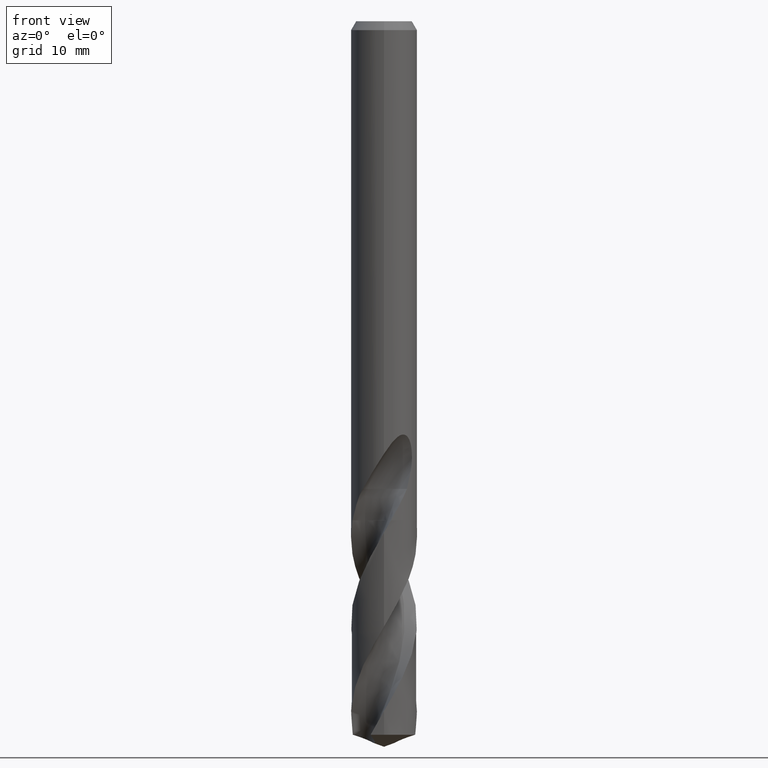
[diagram: clean part render]
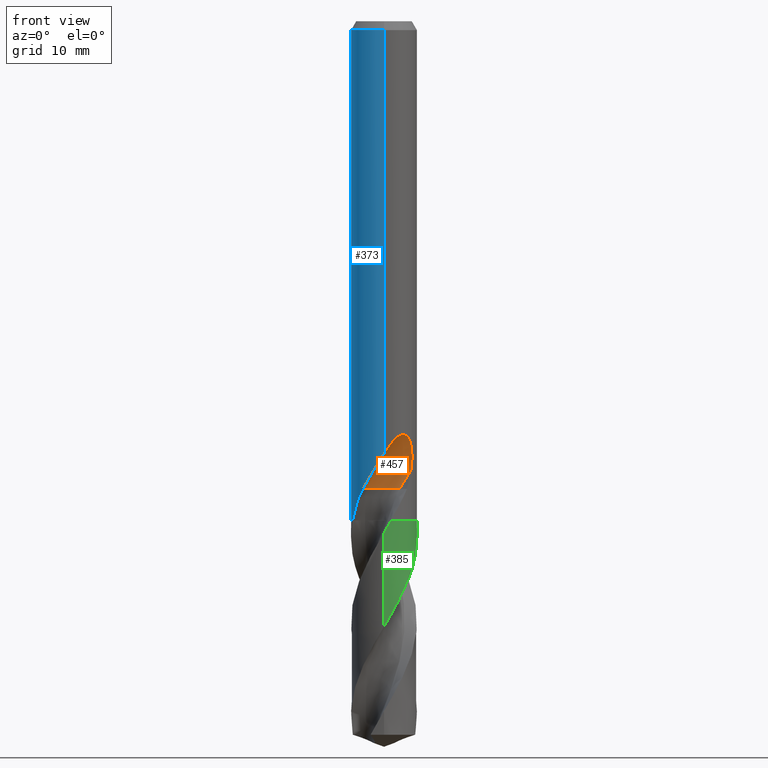
[diagram: same view with three faces highlighted in distinct colors, each labeled with its STEP entity id]
A machine part, front view with three faces highlighted in distinct colors.
Their STEP definitions:

[orange] entity #457 — the highlighted face is a SurfaceOfRevolution surface.
#337=VERTEX_POINT('',#876);
#403=VERTEX_POINT('',#954);
#413=EDGE_CURVE('',#761,#435,#964,.T.);
#425=EDGE_CURVE('',#435,#487,#977,.T.);
#435=VERTEX_POINT('',#988);
#457=ADVANCED_FACE('',(#1013),#1014,.F.);
#475=EDGE_CURVE('',#337,#403,#1032,.T.);
#487=VERTEX_POINT('',#1045);
#627=EDGE_CURVE('',#487,#403,#1193,.T.);
#683=EDGE_CURVE('',#761,#337,#1251,.T.);
#761=VERTEX_POINT('',#1335);
#876=CARTESIAN_POINT('',(8.89361311375361E-013,-3.0,-39.3520632578571));
#954=CARTESIAN_POINT('',(2.44092648989433,-1.74409801070127,-40.8982593158529));
#964=CIRCLE('',#2587,2.0);
#977=CIRCLE('',#2615,2.0);
#988=CARTESIAN_POINT('',(0.311677164133587,-0.92442301917811,-42.541));
#1013=FACE_OUTER_BOUND('',#3301,.T.);
#1014=SURFACE_OF_REVOLUTION('',#3302,#3303);
#1032=B_SPLINE_CURVE_WITH_KNOTS('',3,(#3360,#3361,#3362,#3363,#3364,#3365,#3366,#3367,#3368,#3369,#3370,#3371,#3372,#3373,#3374,#3375,#3376,#3377,#3378,#3379,#3380,#3381,#3382,#3383,#3384,#3385,#3386,#3387,#3388,#3389),.UNSPECIFIED.,.F.,.F.,(4,2,2,2,2,2,2,2,2,2,2,2,2,2,4),(0.0,1.46983380852508,2.27239678300735,2.99931696905311,3.84382348162485,4.858268817967,5.73750597834077,6.13594597323101,6.42715702904358,6.70272785476238,7.0523058754645,7.56375269949944,8.29083449399954,8.76663287136837,9.26666465794678),.UNSPECIFIED.);
#1045=CARTESIAN_POINT('',(1.41421356230238,-1.48578643769762,-42.541));
#1193=CIRCLE('',#4982,13.0357797004233);
#1251=B_SPLINE_CURVE_WITH_KNOTS('',3,(#5417,#5418,#5419,#5420,#5421,#5422,#5423,#5424,#5425,#5426,#5427,#5428,#5429,#5430,#5431,#5432,#5433,#5434,#5435,#5436,#5437,#5438,#5439,#5440,#5441,#5442,#5443,#5444,#5445,#5446),.UNSPECIFIED.,.F.,.F.,(4,2,2,2,2,2,2,2,2,2,2,2,2,2,4),(0.0,1.46983380852508,2.27239678300735,2.99931696905311,3.84382348162485,4.858268817967,5.73750597834077,6.13594597323101,6.42715702904358,6.70272785476238,7.0523058754645,7.56375269949944,8.29083449399954,8.76663287136837,9.26666465794678),.UNSPECIFIED.);
#1335=CARTESIAN_POINT('',(-1.91164679377282,-2.31205677608879,-42.541));
#2587=AXIS2_PLACEMENT_3D('',#7224,#7225,#7226);
#2615=AXIS2_PLACEMENT_3D('',#7254,#7255,#7256);
#3301=EDGE_LOOP('',(#7289,#7290,#7291,#7292,#7293));
#3302=(B_SPLINE_CURVE(3,(#7295,#7296,#7297,#7298,#7299,#7300,#7301,#7302,#7303),.UNSPECIFIED.,.F.,.F.)B_SPLINE_CURVE_WITH_KNOTS((4,1,3,1,4),(-2.8563742903593,-2.55358495452377,-2.25079561868823,-1.94800628285269,-1.64521694701715),.UNSPECIFIED.)RATIONAL_B_SPLINE_CURVE((1.09168138189573,1.03056046063191,0.969439539368091,1.03056046063191,1.09168138189573,1.03056046063191,0.969439539368091,1.03056046063191,1.09168138189573))BOUNDED_CURVE()REPRESENTATION_ITEM('')GEOMETRIC_REPRESENTATION_ITEM()CURVE());
#3303=AXIS1_PLACEMENT('',#7310,#7311);
#3360=CARTESIAN_POINT('',(-1.91164679377282,-2.3120567760888,-42.541));
#3361=CARTESIAN_POINT('',(-1.71375575951833,-2.47567635717405,-42.1237309200278));
#3362=CARTESIAN_POINT('',(-1.486225837873,-2.62112280809457,-41.7347016240395));
#3363=CARTESIAN_POINT('',(-1.08948145585001,-2.79939790357086,-41.0848014893283));
#3364=CARTESIAN_POINT('',(-0.946714273149319,-2.8506808795086,-40.8561448922827));
#3365=CARTESIAN_POINT('',(-0.670335042945821,-2.92732506647416,-40.4135249483925));
#3366=CARTESIAN_POINT('',(-0.537957031087602,-2.95440327743711,-40.2016247371715));
#3367=CARTESIAN_POINT('',(-0.251414391582686,-2.99348382974489,-39.7449234783705));
#3368=CARTESIAN_POINT('',(-0.0948562800467593,-3.00265887070914,-39.4965476035652));
#3369=CARTESIAN_POINT('',(0.252819179254558,-2.99534565963354,-38.9651896548676));
#3370=CARTESIAN_POINT('',(0.458955583756489,-2.97272600277572,-38.6628411750704));
#3371=CARTESIAN_POINT('',(0.856462988645532,-2.88137700708898,-38.1642893885912));
#3372=CARTESIAN_POINT('',(1.07638794081266,-2.81178060567446,-37.9210156171277));
#3373=CARTESIAN_POINT('',(1.40924217176594,-2.65091070729521,-37.6932142640234));
#3374=CARTESIAN_POINT('',(1.51941910433014,-2.59017863231219,-37.6369154430279));
#3375=CARTESIAN_POINT('',(1.71247442146329,-2.46512979296182,-37.5936678633664));
#3376=CARTESIAN_POINT('',(1.79165724831738,-2.40818161234519,-37.592860332513));
#3377=CARTESIAN_POINT('',(1.93913954004224,-2.29088024762937,-37.6307109988692));
#3378=CARTESIAN_POINT('',(2.00364093548818,-2.2342260299911,-37.6661993543013));
#3379=CARTESIAN_POINT('',(2.1349005591831,-2.11007273708381,-37.7772383317337));
#3380=CARTESIAN_POINT('',(2.19562720141664,-2.04573338410109,-37.8592206391473));
#3381=CARTESIAN_POINT('',(2.32001499988593,-1.90524369772981,-38.0837136544856));
#3382=CARTESIAN_POINT('',(2.37946988853628,-1.82873701452893,-38.2502211307938));
#3383=CARTESIAN_POINT('',(2.49127260630273,-1.6751125614895,-38.7160905297008));
#3384=CARTESIAN_POINT('',(2.53169187388303,-1.6096759357542,-39.0478764713719));
#3385=CARTESIAN_POINT('',(2.55169781586479,-1.57767585152545,-39.6619314380946));
#3386=CARTESIAN_POINT('',(2.54699382472898,-1.58547551567002,-39.9064790286728));
#3387=CARTESIAN_POINT('',(2.51376896782865,-1.63767237368775,-40.4027884481159));
#3388=CARTESIAN_POINT('',(2.48410311457679,-1.6836708063326,-40.6526821951794));
#3389=CARTESIAN_POINT('',(2.44092648989433,-1.74409801070127,-40.8982593158529));
#4982=AXIS2_PLACEMENT_3D('',#7430,#7431,#7432);
#5417=CARTESIAN_POINT('',(-1.91164679377282,-2.3120567760888,-42.541));
#5418=CARTESIAN_POINT('',(-1.71375575951833,-2.47567635717405,-42.1237309200278));
#5419=CARTESIAN_POINT('',(-1.486225837873,-2.62112280809457,-41.7347016240395));
#5420=CARTESIAN_POINT('',(-1.08948145585001,-2.79939790357086,-41.0848014893283));
#5421=CARTESIAN_POINT('',(-0.946714273149319,-2.8506808795086,-40.8561448922827));
#5422=CARTESIAN_POINT('',(-0.670335042945821,-2.92732506647416,-40.4135249483925));
#5423=CARTESIAN_POINT('',(-0.537957031087602,-2.95440327743711,-40.2016247371715));
#5424=CARTESIAN_POINT('',(-0.251414391582686,-2.99348382974489,-39.7449234783705));
#5425=CARTESIAN_POINT('',(-0.0948562800467593,-3.00265887070914,-39.4965476035652));
#5426=CARTESIAN_POINT('',(0.252819179254558,-2.99534565963354,-38.9651896548676));
#5427=CARTESIAN_POINT('',(0.458955583756489,-2.97272600277572,-38.6628411750704));
#5428=CARTESIAN_POINT('',(0.856462988645532,-2.88137700708898,-38.1642893885912));
#5429=CARTESIAN_POINT('',(1.07638794081266,-2.81178060567446,-37.9210156171277));
#5430=CARTESIAN_POINT('',(1.40924217176594,-2.65091070729521,-37.6932142640234));
#5431=CARTESIAN_POINT('',(1.51941910433014,-2.59017863231219,-37.6369154430279));
#5432=CARTESIAN_POINT('',(1.71247442146329,-2.46512979296182,-37.5936678633664));
#5433=CARTESIAN_POINT('',(1.79165724831738,-2.40818161234519,-37.592860332513));
#5434=CARTESIAN_POINT('',(1.93913954004224,-2.29088024762937,-37.6307109988692));
#5435=CARTESIAN_POINT('',(2.00364093548818,-2.2342260299911,-37.6661993543013));
#5436=CARTESIAN_POINT('',(2.1349005591831,-2.11007273708381,-37.7772383317337));
#5437=CARTESIAN_POINT('',(2.19562720141664,-2.04573338410109,-37.8592206391473));
#5438=CARTESIAN_POINT('',(2.32001499988593,-1.90524369772981,-38.0837136544856));
#5439=CARTESIAN_POINT('',(2.37946988853628,-1.82873701452893,-38.2502211307938));
#5440=CARTESIAN_POINT('',(2.49127260630273,-1.6751125614895,-38.7160905297008));
#5441=CARTESIAN_POINT('',(2.53169187388303,-1.6096759357542,-39.0478764713719));
#5442=CARTESIAN_POINT('',(2.55169781586479,-1.57767585152545,-39.6619314380946));
#5443=CARTESIAN_POINT('',(2.54699382472898,-1.58547551567002,-39.9064790286728));
#5444=CARTESIAN_POINT('',(2.51376896782865,-1.63767237368775,-40.4027884481159));
#5445=CARTESIAN_POINT('',(2.48410311457679,-1.6836708063326,-40.6526821951794));
#5446=CARTESIAN_POINT('',(2.44092648989433,-1.74409801070127,-40.8982593158529));
#7224=CARTESIAN_POINT('',(-1.41421362090924E-005,-2.89998585786379,-42.541));
#7225=DIRECTION('',(-0.0,0.0,-1.0));
#7226=DIRECTION('',(-0.707099710083089,-0.707113852219296,0.0));
#7254=CARTESIAN_POINT('',(-1.41421362090924E-005,-2.89998585786379,-42.541));
#7255=DIRECTION('',(-0.0,0.0,-1.0));
#7256=DIRECTION('',(-0.707099710083089,-0.707113852219296,0.0));
#7289=ORIENTED_EDGE('',*,*,#683,.F.);
#7290=ORIENTED_EDGE('',*,*,#413,.T.);
#7291=ORIENTED_EDGE('',*,*,#425,.T.);
#7292=ORIENTED_EDGE('',*,*,#627,.T.);
#7293=ORIENTED_EDGE('',*,*,#475,.F.);
#7295=CARTESIAN_POINT('',(1.41421356230238,-1.48578643769762,-42.541));
#7296=CARTESIAN_POINT('',(1.13720927222346,-1.20877660747726,-42.541));
#7297=CARTESIAN_POINT('',(0.416915994492206,-0.815171524174363,-42.541));
#7298=CARTESIAN_POINT('',(-0.399354072916251,-0.901488061406306,-42.541));
#7299=CARTESIAN_POINT('',(-0.761588079575223,-1.0506602678679,-42.541));
#7300=CARTESIAN_POINT('',(-1.1238220862342,-1.1998324743295,-42.541));
#7301=CARTESIAN_POINT('',(-1.76415995760597,-1.71336414621916,-42.541));
#7302=CARTESIAN_POINT('',(-1.99839369541601,-2.50005463403394,-42.541));
#7303=CARTESIAN_POINT('',(-1.99999738382966,-2.8917984928809,-42.541));
#7310=CARTESIAN_POINT('',(1.01696256165565,-14.5,-43.1766016010348));
#7311=DIRECTION('',(-0.847998304005088,0.0,0.52999894000318));
#7430=CARTESIAN_POINT('',(1.01696256165565,-14.5,-43.1766016010348));
#7431=DIRECTION('',(0.847998304005088,0.0,-0.52999894000318));
#7432=DIRECTION('',(0.0535598122533608,0.994880693138896,0.0856956996053773));

[blue] entity #373 — the highlighted cylindrical surface (edge-blend (fillet) strip) has radius 3 mm, axis along (-0, -0, 1).
#331=EDGE_CURVE('',#357,#655,#869,.T.);
#337=VERTEX_POINT('',#876);
#347=EDGE_CURVE('',#337,#581,#888,.T.);
#351=VERTEX_POINT('',#892);
#357=VERTEX_POINT('',#898);
#361=EDGE_CURVE('',#351,#761,#902,.T.);
#373=ADVANCED_FACE('',(#918),#919,.T.);
#419=EDGE_CURVE('',#763,#357,#971,.T.);
#421=VERTEX_POINT('',#973);
#431=VERTEX_POINT('',#984);
#449=VERTEX_POINT('',#1005);
#455=VERTEX_POINT('',#1011);
#469=EDGE_CURVE('',#449,#455,#1026,.T.);
#471=EDGE_CURVE('',#797,#421,#1028,.T.);
#481=EDGE_CURVE('',#753,#505,#1039,.T.);
#491=EDGE_CURVE('',#581,#643,#1049,.T.);
#493=EDGE_CURVE('',#643,#763,#1051,.T.);
#505=VERTEX_POINT('',#1064);
#511=VERTEX_POINT('',#1071);
#529=EDGE_CURVE('',#745,#431,#1089,.T.);
#537=EDGE_CURVE('',#351,#421,#1097,.T.);
#569=EDGE_CURVE('',#611,#573,#1132,.T.);
#573=VERTEX_POINT('',#1136);
#581=VERTEX_POINT('',#1144);
#607=EDGE_CURVE('',#431,#449,#1171,.T.);
#609=EDGE_CURVE('',#511,#699,#1173,.T.);
#611=VERTEX_POINT('',#1175);
#643=VERTEX_POINT('',#1210);
#655=VERTEX_POINT('',#1222);
#659=EDGE_CURVE('',#455,#511,#1226,.T.);
#677=EDGE_CURVE('',#505,#611,#1245,.T.);
#683=EDGE_CURVE('',#761,#337,#1251,.T.);
#699=VERTEX_POINT('',#1268);
#709=EDGE_CURVE('',#573,#745,#1278,.T.);
#745=VERTEX_POINT('',#1318);
#753=VERTEX_POINT('',#1327);
#757=EDGE_CURVE('',#699,#797,#1331,.T.);
#761=VERTEX_POINT('',#1335);
#763=VERTEX_POINT('',#1337);
#797=VERTEX_POINT('',#1375);
#799=EDGE_CURVE('',#655,#753,#1377,.T.);
#869=ELLIPSE('',#1720,4.39883755691887,3.0);
#876=CARTESIAN_POINT('',(8.89361311375361E-013,-3.0,-39.3520632578571));
#888=LINE('',#1743,#1744);
#892=CARTESIAN_POINT('',(-2.86501733623269,-0.889761576539553,-45.4));
#898=CARTESIAN_POINT('',(-2.2826599132014,1.94665449442457,-23.8713369953104));
#902=B_SPLINE_CURVE_WITH_KNOTS('',3,(#1765,#1766,#1767,#1768,#1769,#1770,#1771,#1772,#1773,#1774,#1775,#1776),.UNSPECIFIED.,.F.,.F.,(4,2,2,2,2,4),(0.0,0.415306027999792,1.16752740412631,2.28143363996332,2.73150142560601,3.42846224267929),.UNSPECIFIED.);
#918=FACE_OUTER_BOUND('',#1947,.T.);
#919=CYLINDRICAL_SURFACE('',#1948,3.0);
#971=B_SPLINE_CURVE_WITH_KNOTS('',3,(#2597,#2598,#2599,#2600,#2601,#2602,#2603,#2604,#2605,#2606,#2607,#2608),.UNSPECIFIED.,.F.,.F.,(4,2,2,2,2,4),(3.30788956954355,3.5751625180179,3.84243546649225,4.1097084149666,4.37698136344095,4.6442543119153),.UNSPECIFIED.);
#973=CARTESIAN_POINT('',(-0.645483483322594,2.92973566602138,-45.4));
#984=CARTESIAN_POINT('',(-3.67381906146713E-016,3.0,-32.7128911336578));
#1005=CARTESIAN_POINT('',(-1.337052752443,2.68557069115386,-33.3720803908795));
#1011=CARTESIAN_POINT('',(-2.46407913303377E-016,3.0,-34.0310253601033));
#1026=B_SPLINE_CURVE_WITH_KNOTS('',3,(#3328,#3329,#3330,#3331,#3332,#3333,#3334,#3335,#3336,#3337,#3338,#3339,#3340,#3341,#3342,#3343),.UNSPECIFIED.,.F.,.F.,(4,2,2,2,2,2,2,4),(5.66023402257373,6.29060333517104,6.60504483258975,6.91948633000846,7.23392782742717,7.54836932484587,7.86141901111221,8.17446869737855),.UNSPECIFIED.);
#1028=B_SPLINE_CURVE_WITH_KNOTS('',3,(#3346,#3347,#3348,#3349,#3350,#3351,#3352,#3353,#3354,#3355),.UNSPECIFIED.,.F.,.F.,(4,2,2,2,4),(0.0,0.736394107318382,1.40283827856893,1.80419873583551,2.99560717369439),.UNSPECIFIED.);
#1039=B_SPLINE_CURVE_WITH_KNOTS('',3,(#3399,#3400,#3401,#3402,#3403,#3404,#3405,#3406,#3407,#3408,#3409,#3410,#3411,#3412,#3413,#3414,#3415,#3416,#3417,#3418,#3419,#3420,#3421,#3422,#3423,#3424,#3425),.UNSPECIFIED.,.F.,.F.,(4,2,3,2,2,2,2,2,2,2,2,2,4),(-0.54422824842136,-0.27211412421068,0.0,0.272114124210678,0.544228248421357,0.817906359646673,1.09158447087199,1.36255924571499,1.63353402055798,1.90530456554772,2.17707511053746,2.4488456555272,2.72061620051693),.UNSPECIFIED.);
#1049=CIRCLE('',#3437,3.0);
#1051=ELLIPSE('',#3440,85.9611250435315,3.0);
#1064=CARTESIAN_POINT('',(-0.486378944383045,2.96031003823262,-31.6432837483006));
#1071=CARTESIAN_POINT('',(-8.87140865326111E-013,3.0,-39.3520632578571));
#1089=LINE('',#3558,#3559);
#1097=CIRCLE('',#3607,3.0);
#1132=CIRCLE('',#4184,3.0);
#1136=CARTESIAN_POINT('',(-1.0350734039088,2.81578107254819,-31.3171221986971));
#1144=CARTESIAN_POINT('',(3.67381906146713E-016,-3.0,-0.799999999999997));
#1171=ELLIPSE('',#4262,3.34478529612858,3.0);
#1173=B_SPLINE_CURVE_WITH_KNOTS('',3,(#4265,#4266,#4267,#4268,#4269,#4270,#4271,#4272,#4273,#4274,#4275,#4276,#4277,#4278,#4279,#4280,#4281,#4282,#4283,#4284,#4285,#4286,#4287,#4288,#4289,#4290,#4291,#4292,#4293,#4294),.UNSPECIFIED.,.F.,.F.,(4,2,2,2,2,2,2,2,2,2,2,2,2,2,4),(0.0,1.46983380852506,2.27239678300714,2.99931696905269,3.8438234816245,4.85826881796674,5.73750597834062,6.13594597323091,6.4271570290435,6.70272785476234,7.05230587546451,7.56375269949955,8.29083449399991,8.76663287136895,9.26666465794757),.UNSPECIFIED.);
#1175=CARTESIAN_POINT('',(-0.562333990228013,2.94682549253162,-31.3171221986971));
#1210=CARTESIAN_POINT('',(-1.79915003951659,2.40063723525806,-0.799999999999997));
#1222=CARTESIAN_POINT('',(-3.67381906146713E-016,3.0,-25.0009117563346));
#1226=LINE('',#5197,#5198);
#1245=B_SPLINE_CURVE_WITH_KNOTS('',3,(#5383,#5384,#5385,#5386,#5387,#5388,#5389,#5390,#5391,#5392,#5393,#5394,#5395,#5396,#5397,#5398,#5399,#5400,#5401,#5402,#5403,#5404,#5405,#5406,#5407,#5408,#5409),.UNSPECIFIED.,.F.,.F.,(4,2,3,2,2,2,2,2,2,2,2,2,4),(-0.54422824842136,-0.27211412421068,0.0,0.272114124210678,0.544228248421357,0.817906359646673,1.09158447087199,1.36255924571499,1.63353402055798,1.90530456554772,2.17707511053746,2.4488456555272,2.72061620051693),.UNSPECIFIED.);
#1251=B_SPLINE_CURVE_WITH_KNOTS('',3,(#5417,#5418,#5419,#5420,#5421,#5422,#5423,#5424,#5425,#5426,#5427,#5428,#5429,#5430,#5431,#5432,#5433,#5434,#5435,#5436,#5437,#5438,#5439,#5440,#5441,#5442,#5443,#5444,#5445,#5446),.UNSPECIFIED.,.F.,.F.,(4,2,2,2,2,2,2,2,2,2,2,2,2,2,4),(0.0,1.46983380852508,2.27239678300735,2.99931696905311,3.84382348162485,4.858268817967,5.73750597834077,6.13594597323101,6.42715702904358,6.70272785476238,7.0523058754645,7.56375269949944,8.29083449399954,8.76663287136837,9.26666465794678),.UNSPECIFIED.);
#1268=CARTESIAN_POINT('',(-2.44092648989433,1.74409801070127,-40.8982593158529));
#1278=B_SPLINE_CURVE_WITH_KNOTS('',3,(#5735,#5736,#5737,#5738,#5739,#5740,#5741,#5742,#5743,#5744,#5745,#5746,#5747,#5748),.UNSPECIFIED.,.F.,.F.,(4,2,2,2,2,2,4),(3.16026050654945,3.61086409539206,4.06146768423468,4.51207127307729,4.95991823802074,5.40776520296419,5.86282890530594),.UNSPECIFIED.);
#1318=CARTESIAN_POINT('',(-2.06254272401587E-016,3.0,-32.5000801551881));
#1327=CARTESIAN_POINT('',(-1.20768269592175E-015,3.0,-32.0232688117743));
#1331=B_SPLINE_CURVE_WITH_KNOTS('',3,(#6425,#6426,#6427,#6428),.UNSPECIFIED.,.F.,.F.,(4,4),(0.0,1.72415970165408),.UNSPECIFIED.);
#1335=CARTESIAN_POINT('',(-1.91164679377282,-2.31205677608879,-42.541));
#1337=CARTESIAN_POINT('',(-2.52177371746177,1.62500994394466,-23.0110595671924));
#1375=CARTESIAN_POINT('',(-2.08523202784716,2.15680490310098,-42.541));
#1377=LINE('',#6992,#6993);
#1720=AXIS2_PLACEMENT_3D('',#7075,#7076,#7077);
#1743=CARTESIAN_POINT('',(3.67381906146713E-016,-3.0,-40.7));
#1744=VECTOR('',#7113,1.0);
#1765=CARTESIAN_POINT('',(-2.8650173362327,-0.889761576539556,-45.4));
#1766=CARTESIAN_POINT('',(-2.84451169075318,-0.955789410667803,-45.2800659025839));
#1767=CARTESIAN_POINT('',(-2.82157730472554,-1.02158557590629,-45.1603589587517));
#1768=CARTESIAN_POINT('',(-2.75001209890257,-1.20566378564561,-44.8249620406592));
#1769=CARTESIAN_POINT('',(-2.6994432815701,-1.31475240913865,-44.6291765332444));
#1770=CARTESIAN_POINT('',(-2.55245916913151,-1.58716416440156,-44.0961978532129));
#1771=CARTESIAN_POINT('',(-2.46107786102922,-1.72373672177642,-43.7835529142592));
#1772=CARTESIAN_POINT('',(-2.31530985723282,-1.90891054968698,-43.3604038332184));
#1773=CARTESIAN_POINT('',(-2.26917060258546,-1.96403057108495,-43.2291034831436));
#1774=CARTESIAN_POINT('',(-2.13001448210888,-2.11630545171514,-42.9025271485999));
#1775=CARTESIAN_POINT('',(-2.03024881695577,-2.21399466113667,-42.7179342631218));
#1776=CARTESIAN_POINT('',(-1.91164679377282,-2.31205677608879,-42.541));
#1947=EDGE_LOOP('',(#7158,#7159,#7160,#7161,#7162,#7163,#7164,#7165,#7166,#7167,#7168,#7169,#7170,#7171,#7172,#7173,#7174,#7175,#7176,#7177));
#1948=AXIS2_PLACEMENT_3D('',#7178,#7179,#7180);
#2597=CARTESIAN_POINT('',(-2.50249686713845,1.65454206049959,-22.7851412014176));
#2598=CARTESIAN_POINT('',(-2.51582947593657,1.63437647323784,-22.8732242022064));
#2599=CARTESIAN_POINT('',(-2.52224462272648,1.62427893636757,-22.9638479804106));
#2600=CARTESIAN_POINT('',(-2.52224462272648,1.62427893636757,-23.1420299460602));
#2601=CARTESIAN_POINT('',(-2.51582947593657,1.63437647323784,-23.2326537242643));
#2602=CARTESIAN_POINT('',(-2.48916425834033,1.67470764776135,-23.408819725842));
#2603=CARTESIAN_POINT('',(-2.46888600291622,1.7049378084188,-23.4943584779312));
#2604=CARTESIAN_POINT('',(-2.41423408090567,1.78148417509052,-23.6532336111416));
#2605=CARTESIAN_POINT('',(-2.37970549766852,1.82791383934016,-23.7268045582116));
#2606=CARTESIAN_POINT('',(-2.29788287508865,1.92976722949031,-23.8571075060433));
#2607=CARTESIAN_POINT('',(-2.25053184097059,1.98513859743127,-23.9138446323197));
#2608=CARTESIAN_POINT('',(-2.1993251643641,2.0403354678569,-23.961472197729));
#3328=CARTESIAN_POINT('',(-1.53050642192579,2.58022287650581,-33.0319811255889));
#3329=CARTESIAN_POINT('',(-1.44691631248335,2.62980577312329,-33.2314887010961));
#3330=CARTESIAN_POINT('',(-1.32276760444366,2.69707077181617,-33.4113258593841));
#3331=CARTESIAN_POINT('',(-1.10973155101076,2.78826898930335,-33.6245951706909));
#3332=CARTESIAN_POINT('',(-1.02948996220254,2.81934349084513,-33.6916117853674));
#3333=CARTESIAN_POINT('',(-0.853932698223484,2.87738531454781,-33.8105216600777));
#3334=CARTESIAN_POINT('',(-0.758609991487907,2.90431263574779,-33.8624240602539));
#3335=CARTESIAN_POINT('',(-0.558469552260235,2.94934446690523,-33.9464055954533));
#3336=CARTESIAN_POINT('',(-0.453457041446381,2.96746268462387,-33.9785511641911));
#3337=CARTESIAN_POINT('',(-0.240810292537893,2.99223469602914,-34.0209924679526));
#3338=CARTESIAN_POINT('',(-0.133171317626829,2.99887501234033,-34.0312723335086));
#3339=CARTESIAN_POINT('',(0.0759830626177195,3.00085245803086,-34.0312723335086));
#3340=CARTESIAN_POINT('',(0.183273473896684,2.99629272230549,-34.0210815541729));
#3341=CARTESIAN_POINT('',(0.39543915272815,2.97573303917486,-33.9788816901513));
#3342=CARTESIAN_POINT('',(0.500318639064909,2.95974677710468,-33.9468871509919));
#3343=CARTESIAN_POINT('',(0.600330982089903,2.93932011049205,-33.9050368602192));
#3346=CARTESIAN_POINT('',(-2.08523202784716,2.15680490310097,-42.541));
#3347=CARTESIAN_POINT('',(-2.00111361833608,2.23813187031618,-42.7567844705455));
#3348=CARTESIAN_POINT('',(-1.90980089419337,2.3172661642453,-42.9730832519437));
#3349=CARTESIAN_POINT('',(-1.71107484844197,2.46702195493076,-43.3953910347177));
#3350=CARTESIAN_POINT('',(-1.60889271231799,2.53535889388571,-43.600978754977));
#3351=CARTESIAN_POINT('',(-1.43011382824745,2.63833055099824,-43.9526714603471));
#3352=CARTESIAN_POINT('',(-1.36207017920177,2.67406509548579,-44.0847678408921));
#3353=CARTESIAN_POINT('',(-1.08796489941274,2.80498876058612,-44.6102580842301));
#3354=CARTESIAN_POINT('',(-0.86967170915745,2.88034220073025,-45.0050947840214));
#3355=CARTESIAN_POINT('',(-0.645483483322609,2.92973566602137,-45.4));
#3399=CARTESIAN_POINT('',(0.665621182276714,2.92522622060321,-30.8140957881762));
#3400=CARTESIAN_POINT('',(0.728850563417096,2.91083867849353,-30.877518087557));
#3401=CARTESIAN_POINT('',(0.783900459387161,2.89602337967411,-30.9578702196133));
#3402=CARTESIAN_POINT('',(0.857188692916628,2.87518328740958,-31.1345580124299));
#3403=CARTESIAN_POINT('',(0.875400981188567,2.86943777108584,-31.2309373045166));
#3404=CARTESIAN_POINT('',(0.875400981188567,2.86943777108584,-31.3216420125868));
#3405=CARTESIAN_POINT('',(0.875400981188567,2.86943777108584,-31.412346720657));
#3406=CARTESIAN_POINT('',(0.857188692916629,2.87518328740958,-31.5087260127437));
#3407=CARTESIAN_POINT('',(0.783900459387161,2.89602337967411,-31.6854138055602));
#3408=CARTESIAN_POINT('',(0.728850563417096,2.91083867849353,-31.7657659376165));
#3409=CARTESIAN_POINT('',(0.60202838769231,2.93969645569731,-31.8929750586276));
#3410=CARTESIAN_POINT('',(0.5214778595293,2.95568533572518,-31.9483797636259));
#3411=CARTESIAN_POINT('',(0.34429909105015,2.98152194310932,-32.0221641076746));
#3412=CARTESIAN_POINT('',(0.247628172090375,2.99115403786358,-32.0405166027747));
#3413=CARTESIAN_POINT('',(0.0663244946631877,3.00062654348629,-32.0405166027747));
#3414=CARTESIAN_POINT('',(-0.0299285908853379,3.00115720326599,-32.0224875186921));
#3415=CARTESIAN_POINT('',(-0.206881310600538,2.99416773126077,-31.949244373347));
#3416=CARTESIAN_POINT('',(-0.287593937381961,2.98687212067831,-31.8940404490632));
#3417=CARTESIAN_POINT('',(-0.415200117492864,2.97182576996222,-31.7666805419979));
#3418=CARTESIAN_POINT('',(-0.470604049431396,2.96309385107775,-31.6859121102136));
#3419=CARTESIAN_POINT('',(-0.544183869965539,2.95046729924835,-31.5086992019516));
#3420=CARTESIAN_POINT('',(-0.562348199187247,2.94682278104247,-31.41223219425));
#3421=CARTESIAN_POINT('',(-0.562348199187247,2.94682278104247,-31.2310518309235));
#3422=CARTESIAN_POINT('',(-0.54418386996554,2.95046729924835,-31.134584823222));
#3423=CARTESIAN_POINT('',(-0.4706040494314,2.96309385107775,-30.95737191496));
#3424=CARTESIAN_POINT('',(-0.415200117492863,2.97182576996222,-30.8766034831756));
#3425=CARTESIAN_POINT('',(-0.351303479704285,2.97935997575782,-30.812830162452));
#3437=AXIS2_PLACEMENT_3D('',#7329,#7330,#7331);
#3440=AXIS2_PLACEMENT_3D('',#7332,#7333,#7334);
#3558=CARTESIAN_POINT('',(-3.67381906146713E-016,3.0,-40.7));
#3559=VECTOR('',#7358,1.0);
#3607=AXIS2_PLACEMENT_3D('',#7363,#7364,#7365);
#4184=AXIS2_PLACEMENT_3D('',#7395,#7396,#7397);
#4262=AXIS2_PLACEMENT_3D('',#7413,#7414,#7415);
#4265=CARTESIAN_POINT('',(1.91164679377282,2.3120567760888,-42.541));
#4266=CARTESIAN_POINT('',(1.71375575951834,2.47567635717405,-42.1237309200278));
#4267=CARTESIAN_POINT('',(1.48622583787301,2.62112280809456,-41.7347016240395));
#4268=CARTESIAN_POINT('',(1.08948145585004,2.79939790357085,-41.0848014893283));
#4269=CARTESIAN_POINT('',(0.946714273149378,2.85068087950859,-40.8561448922827));
#4270=CARTESIAN_POINT('',(0.670335042945774,2.92732506647418,-40.4135249483925));
#4271=CARTESIAN_POINT('',(0.5379570310875,2.95440327743712,-40.2016247371714));
#4272=CARTESIAN_POINT('',(0.25141439158274,2.99348382974488,-39.7449234783706));
#4273=CARTESIAN_POINT('',(0.0948562800467875,3.00265887070915,-39.4965476035652));
#4274=CARTESIAN_POINT('',(-0.252819179254595,2.99534565963354,-38.9651896548675));
#4275=CARTESIAN_POINT('',(-0.458955583756502,2.97272600277571,-38.6628411750703));
#4276=CARTESIAN_POINT('',(-0.856462988645532,2.88137700708898,-38.1642893885912));
#4277=CARTESIAN_POINT('',(-1.07638794081266,2.81178060567446,-37.9210156171277));
#4278=CARTESIAN_POINT('',(-1.40924217176593,2.65091070729521,-37.6932142640234));
#4279=CARTESIAN_POINT('',(-1.51941910433014,2.59017863231219,-37.6369154430279));
#4280=CARTESIAN_POINT('',(-1.71247442146329,2.46512979296182,-37.5936678633664));
#4281=CARTESIAN_POINT('',(-1.79165724831738,2.40818161234519,-37.592860332513));
#4282=CARTESIAN_POINT('',(-1.93913954004224,2.29088024762937,-37.6307109988692));
#4283=CARTESIAN_POINT('',(-2.00364093548818,2.23422602999109,-37.6661993543013));
#4284=CARTESIAN_POINT('',(-2.1349005591831,2.11007273708381,-37.7772383317337));
#4285=CARTESIAN_POINT('',(-2.19562720141664,2.04573338410109,-37.8592206391473));
#4286=CARTESIAN_POINT('',(-2.32001499988593,1.90524369772981,-38.0837136544856));
#4287=CARTESIAN_POINT('',(-2.37946988853628,1.82873701452892,-38.2502211307938));
#4288=CARTESIAN_POINT('',(-2.49127260630273,1.67511256148949,-38.7160905297008));
#4289=CARTESIAN_POINT('',(-2.53169187388303,1.6096759357542,-39.0478764713719));
#4290=CARTESIAN_POINT('',(-2.55169781586479,1.57767585152545,-39.6619314380946));
#4291=CARTESIAN_POINT('',(-2.54699382472898,1.58547551567002,-39.9064790286728));
#4292=CARTESIAN_POINT('',(-2.51376896782865,1.63767237368775,-40.4027884481159));
#4293=CARTESIAN_POINT('',(-2.48410311457679,1.6836708063326,-40.6526821951794));
#4294=CARTESIAN_POINT('',(-2.44092648989433,1.74409801070127,-40.8982593158529));
#5197=CARTESIAN_POINT('',(-3.67381906146713E-016,3.0,-40.7));
#5198=VECTOR('',#7442,1.0);
#5383=CARTESIAN_POINT('',(0.665621182276714,2.92522622060321,-30.8140957881762));
#5384=CARTESIAN_POINT('',(0.728850563417096,2.91083867849353,-30.877518087557));
#5385=CARTESIAN_POINT('',(0.783900459387161,2.89602337967411,-30.9578702196133));
#5386=CARTESIAN_POINT('',(0.857188692916628,2.87518328740958,-31.1345580124299));
#5387=CARTESIAN_POINT('',(0.875400981188567,2.86943777108584,-31.2309373045166));
#5388=CARTESIAN_POINT('',(0.875400981188567,2.86943777108584,-31.3216420125868));
#5389=CARTESIAN_POINT('',(0.875400981188567,2.86943777108584,-31.412346720657));
#5390=CARTESIAN_POINT('',(0.857188692916629,2.87518328740958,-31.5087260127437));
#5391=CARTESIAN_POINT('',(0.783900459387161,2.89602337967411,-31.6854138055602));
#5392=CARTESIAN_POINT('',(0.728850563417096,2.91083867849353,-31.7657659376165));
#5393=CARTESIAN_POINT('',(0.60202838769231,2.93969645569731,-31.8929750586276));
#5394=CARTESIAN_POINT('',(0.5214778595293,2.95568533572518,-31.9483797636259));
#5395=CARTESIAN_POINT('',(0.34429909105015,2.98152194310932,-32.0221641076746));
#5396=CARTESIAN_POINT('',(0.247628172090375,2.99115403786358,-32.0405166027747));
#5397=CARTESIAN_POINT('',(0.0663244946631877,3.00062654348629,-32.0405166027747));
#5398=CARTESIAN_POINT('',(-0.0299285908853379,3.00115720326599,-32.0224875186921));
#5399=CARTESIAN_POINT('',(-0.206881310600538,2.99416773126077,-31.949244373347));
#5400=CARTESIAN_POINT('',(-0.287593937381961,2.98687212067831,-31.8940404490632));
#5401=CARTESIAN_POINT('',(-0.415200117492864,2.97182576996222,-31.7666805419979));
#5402=CARTESIAN_POINT('',(-0.470604049431396,2.96309385107775,-31.6859121102136));
#5403=CARTESIAN_POINT('',(-0.544183869965539,2.95046729924835,-31.5086992019516));
#5404=CARTESIAN_POINT('',(-0.562348199187247,2.94682278104247,-31.41223219425));
#5405=CARTESIAN_POINT('',(-0.562348199187247,2.94682278104247,-31.2310518309235));
#5406=CARTESIAN_POINT('',(-0.54418386996554,2.95046729924835,-31.134584823222));
#5407=CARTESIAN_POINT('',(-0.4706040494314,2.96309385107775,-30.95737191496));
#5408=CARTESIAN_POINT('',(-0.415200117492863,2.97182576996222,-30.8766034831756));
#5409=CARTESIAN_POINT('',(-0.351303479704285,2.97935997575782,-30.812830162452));
#5417=CARTESIAN_POINT('',(-1.91164679377282,-2.3120567760888,-42.541));
#5418=CARTESIAN_POINT('',(-1.71375575951833,-2.47567635717405,-42.1237309200278));
#5419=CARTESIAN_POINT('',(-1.486225837873,-2.62112280809457,-41.7347016240395));
#5420=CARTESIAN_POINT('',(-1.08948145585001,-2.79939790357086,-41.0848014893283));
#5421=CARTESIAN_POINT('',(-0.946714273149319,-2.8506808795086,-40.8561448922827));
#5422=CARTESIAN_POINT('',(-0.670335042945821,-2.92732506647416,-40.4135249483925));
#5423=CARTESIAN_POINT('',(-0.537957031087602,-2.95440327743711,-40.2016247371715));
#5424=CARTESIAN_POINT('',(-0.251414391582686,-2.99348382974489,-39.7449234783705));
#5425=CARTESIAN_POINT('',(-0.0948562800467593,-3.00265887070914,-39.4965476035652));
#5426=CARTESIAN_POINT('',(0.252819179254558,-2.99534565963354,-38.9651896548676));
#5427=CARTESIAN_POINT('',(0.458955583756489,-2.97272600277572,-38.6628411750704));
#5428=CARTESIAN_POINT('',(0.856462988645532,-2.88137700708898,-38.1642893885912));
#5429=CARTESIAN_POINT('',(1.07638794081266,-2.81178060567446,-37.9210156171277));
#5430=CARTESIAN_POINT('',(1.40924217176594,-2.65091070729521,-37.6932142640234));
#5431=CARTESIAN_POINT('',(1.51941910433014,-2.59017863231219,-37.6369154430279));
#5432=CARTESIAN_POINT('',(1.71247442146329,-2.46512979296182,-37.5936678633664));
#5433=CARTESIAN_POINT('',(1.79165724831738,-2.40818161234519,-37.592860332513));
#5434=CARTESIAN_POINT('',(1.93913954004224,-2.29088024762937,-37.6307109988692));
#5435=CARTESIAN_POINT('',(2.00364093548818,-2.2342260299911,-37.6661993543013));
#5436=CARTESIAN_POINT('',(2.1349005591831,-2.11007273708381,-37.7772383317337));
#5437=CARTESIAN_POINT('',(2.19562720141664,-2.04573338410109,-37.8592206391473));
#5438=CARTESIAN_POINT('',(2.32001499988593,-1.90524369772981,-38.0837136544856));
#5439=CARTESIAN_POINT('',(2.37946988853628,-1.82873701452893,-38.2502211307938));
#5440=CARTESIAN_POINT('',(2.49127260630273,-1.6751125614895,-38.7160905297008));
#5441=CARTESIAN_POINT('',(2.53169187388303,-1.6096759357542,-39.0478764713719));
#5442=CARTESIAN_POINT('',(2.55169781586479,-1.57767585152545,-39.6619314380946));
#5443=CARTESIAN_POINT('',(2.54699382472898,-1.58547551567002,-39.9064790286728));
#5444=CARTESIAN_POINT('',(2.51376896782865,-1.63767237368775,-40.4027884481159));
#5445=CARTESIAN_POINT('',(2.48410311457679,-1.6836708063326,-40.6526821951794));
#5446=CARTESIAN_POINT('',(2.44092648989433,-1.74409801070127,-40.8982593158529));
#5735=CARTESIAN_POINT('',(-0.944028754947609,2.84759718180646,-30.87109591768));
#5736=CARTESIAN_POINT('',(-1.00479265183033,2.82745289805341,-31.0168616503562));
#5737=CARTESIAN_POINT('',(-1.03510901790186,2.81576798068631,-31.1761006644519));
#5738=CARTESIAN_POINT('',(-1.03510901790186,2.81576798068631,-31.4765030570137));
#5739=CARTESIAN_POINT('',(-1.00479265183033,2.82745289805341,-31.6357420711094));
#5740=CARTESIAN_POINT('',(-0.88326485806506,2.86774146555976,-31.9272735364618));
#5741=CARTESIAN_POINT('',(-0.792109261194285,2.89554580131596,-32.0596991578702));
#5742=CARTESIAN_POINT('',(-0.582867737485067,2.94478284423827,-32.2682275153448));
#5743=CARTESIAN_POINT('',(-0.450640829386874,2.96956027684007,-32.358826497016));
#5744=CARTESIAN_POINT('',(-0.159819744133953,2.99930375982357,-32.4794282329782));
#5745=CARTESIAN_POINT('',(-0.00114290335869099,3.00371168811663,-32.5093686300866));
#5746=CARTESIAN_POINT('',(0.299461057962613,2.98886806232847,-32.5093686300866));
#5747=CARTESIAN_POINT('',(0.459264276215476,2.96836791045541,-32.4785566268234));
#5748=CARTESIAN_POINT('',(0.604975334200916,2.93836771779988,-32.4175314011172));
#6425=CARTESIAN_POINT('',(-2.44092648994695,1.74409801062763,-40.8982593158818));
#6426=CARTESIAN_POINT('',(-2.34420896265217,1.87945759075297,-41.4483742748423));
#6427=CARTESIAN_POINT('',(-2.22763849090267,2.01912415260341,-42.0017629451952));
#6428=CARTESIAN_POINT('',(-2.08523202784716,2.15680490310097,-42.541));
#6992=CARTESIAN_POINT('',(-3.67381906146713E-016,3.0,-40.7));
#6993=VECTOR('',#7548,1.0);
#7075=CARTESIAN_POINT('',(0.0,0.0,-21.7838056262606));
#7076=DIRECTION('',(0.0,-0.731353701619171,-0.681998360062499));
#7077=DIRECTION('',(0.0,0.681998360062499,-0.731353701619171));
#7113=DIRECTION('',(-0.0,-0.0,1.0));
#7158=ORIENTED_EDGE('',*,*,#799,.T.);
#7159=ORIENTED_EDGE('',*,*,#481,.T.);
#7160=ORIENTED_EDGE('',*,*,#677,.T.);
#7161=ORIENTED_EDGE('',*,*,#569,.T.);
#7162=ORIENTED_EDGE('',*,*,#709,.T.);
#7163=ORIENTED_EDGE('',*,*,#529,.T.);
#7164=ORIENTED_EDGE('',*,*,#607,.T.);
#7165=ORIENTED_EDGE('',*,*,#469,.T.);
#7166=ORIENTED_EDGE('',*,*,#659,.T.);
#7167=ORIENTED_EDGE('',*,*,#609,.T.);
#7168=ORIENTED_EDGE('',*,*,#757,.T.);
#7169=ORIENTED_EDGE('',*,*,#471,.T.);
#7170=ORIENTED_EDGE('',*,*,#537,.F.);
#7171=ORIENTED_EDGE('',*,*,#361,.T.);
#7172=ORIENTED_EDGE('',*,*,#683,.T.);
#7173=ORIENTED_EDGE('',*,*,#347,.T.);
#7174=ORIENTED_EDGE('',*,*,#491,.T.);
#7175=ORIENTED_EDGE('',*,*,#493,.T.);
#7176=ORIENTED_EDGE('',*,*,#419,.T.);
#7177=ORIENTED_EDGE('',*,*,#331,.T.);
#7178=CARTESIAN_POINT('',(0.0,0.0,-40.7));
#7179=DIRECTION('',(-0.0,-0.0,1.0));
#7180=DIRECTION('',(0.0,1.0,0.0));
#7329=CARTESIAN_POINT('',(0.0,0.0,-0.799999999999997));
#7330=DIRECTION('',(0.0,0.0,-1.0));
#7331=DIRECTION('',(0.0,1.0,0.0));
#7332=CARTESIAN_POINT('',(0.0,0.0,-69.5452559092481));
#7333=DIRECTION('',(0.0,-0.999390827019096,0.0348994967025009));
#7334=DIRECTION('',(0.0,0.0348994967025009,0.999390827019096));
#7358=DIRECTION('',(0.0,0.0,-1.0));
#7363=CARTESIAN_POINT('',(0.0,0.0,-45.4));
#7364=DIRECTION('',(0.0,0.0,-1.0));
#7365=DIRECTION('',(0.0,1.0,0.0));
#7395=CARTESIAN_POINT('',(0.0,0.0,-31.3171221986971));
#7396=DIRECTION('',(0.0,-0.0,1.0));
#7397=DIRECTION('',(0.0,1.0,0.0));
#7413=CARTESIAN_POINT('',(0.0,0.0,-32.7128911336578));
#7414=DIRECTION('',(-0.442195774284071,0.0,0.896918556617774));
#7415=DIRECTION('',(0.896918556617774,-0.0,0.442195774284071));
#7442=DIRECTION('',(0.0,0.0,-1.0));
#7548=DIRECTION('',(0.0,0.0,-1.0));

[green] entity #385 — the highlighted conical surface has half-angle 0 deg.
#369=VERTEX_POINT('',#913);
#385=ADVANCED_FACE('',(#934),#935,.T.);
#503=VERTEX_POINT('',#1062);
#539=EDGE_CURVE('',#669,#657,#1099,.T.);
#549=VERTEX_POINT('',#1110);
#591=EDGE_CURVE('',#503,#549,#1154,.T.);
#615=EDGE_CURVE('',#549,#651,#1179,.T.);
#651=VERTEX_POINT('',#1218);
#657=VERTEX_POINT('',#1224);
#669=VERTEX_POINT('',#1236);
#691=EDGE_CURVE('',#369,#657,#1259,.T.);
#703=EDGE_CURVE('',#669,#503,#1272,.T.);
#773=EDGE_CURVE('',#651,#369,#1350,.T.);
#913=CARTESIAN_POINT('',(0.642616241034227,-2.93026355990998,-45.405));
#934=FACE_OUTER_BOUND('',#2391,.T.);
#935=CONICAL_SURFACE('',#2392,2.99995,5.12607864747067E-006);
#1062=CARTESIAN_POINT('',(2.86578746513015,0.88693989719291,-45.405));
#1099=LINE('',#3610,#3611);
#1110=CARTESIAN_POINT('',(2.86493406579317,0.889692536024563,-45.4));
#1154=B_SPLINE_CURVE_WITH_KNOTS('',3,(#4234,#4235,#4236,#4237),.UNSPECIFIED.,.F.,.F.,(4,4),(0.0,0.0106873064366049),.UNSPECIFIED.);
#1179=CIRCLE('',#4301,2.9999);
#1218=CARTESIAN_POINT('',(0.645454874550115,-2.92963957082087,-45.4));
#1224=CARTESIAN_POINT('',(-1.38980395485763E-011,-2.99990574704636,-46.5211389365925));
#1236=CARTESIAN_POINT('',(5.72748069868634E-015,-2.99994958719087,-55.0735134743874));
#1259=B_SPLINE_CURVE_WITH_KNOTS('',3,(#5552,#5553,#5554,#5555,#5556,#5557,#5558,#5559,#5560,#5561,#5562,#5563,#5564,#5565,#5566,#5567,#5568,#5569,#5570,#5571,#5572,#5573,#5574,#5575,#5576,#5577,#5578,#5579,#5580,#5581,#5582,#5583,#5584,#5585,#5586,#5587,#5588,#5589,#5590,#5591,#5592,#5593,#5594,#5595,#5596,#5597,#5598,#5599,#5600,#5601,#5602,#5603,#5604,#5605,#5606,#5607),.UNSPECIFIED.,.F.,.F.,(4,2,2,2,2,2,2,2,2,2,2,2,2,2,2,2,2,2,2,2,2,2,2,2,2,2,2,4),(0.0,0.225382088023127,1.87376442988067,3.02496287449142,4.17865407549856,4.75803482777223,5.9124092639957,6.49185768492399,7.06913343609198,8.22003760651326,8.79669717658283,9.94785800748745,10.5241990783924,11.6761096189361,12.251657062484,13.4037427521159,13.9789962266507,15.048115710189,15.5167009427053,16.3949770626714,16.7807306044642,17.502271583327,18.1350078070239,19.243884717768,20.0749388848293,20.6986238458649,21.6340570112428,22.5698070577942),.UNSPECIFIED.);
#1272=B_SPLINE_CURVE_WITH_KNOTS('',3,(#5663,#5664,#5665,#5666,#5667,#5668,#5669,#5670,#5671,#5672,#5673,#5674,#5675,#5676,#5677,#5678,#5679,#5680,#5681,#5682,#5683,#5684,#5685,#5686,#5687,#5688,#5689,#5690,#5691,#5692,#5693,#5694,#5695,#5696,#5697,#5698,#5699,#5700,#5701,#5702,#5703,#5704,#5705,#5706,#5707,#5708,#5709,#5710,#5711,#5712,#5713,#5714,#5715,#5716,#5717,#5718,#5719,#5720),.UNSPECIFIED.,.F.,.F.,(4,2,2,2,2,2,2,2,2,2,2,2,2,2,2,2,2,2,2,2,2,2,2,2,2,2,2,2,4),(0.0,0.705446601304077,5.40706831399955,5.98513555246922,7.10352541780848,7.68127963578394,8.8399443878619,9.12898939807338,10.2894917225115,10.8678122327344,11.717773158107,12.1429979535035,12.5672602841752,13.4178628878207,13.8433657486323,14.2678784755328,15.1190594286514,15.5448917474227,15.969765314408,16.8216313657209,18.2895083110179,18.8403234771113,19.8022695485633,20.5257671128427,20.7969540801782,21.0340909021176,21.8646864673617,22.2789531187073,22.6975257657845),.UNSPECIFIED.);
#1350=B_SPLINE_CURVE_WITH_KNOTS('',3,(#6877,#6878,#6879,#6880),.UNSPECIFIED.,.F.,.F.,(4,4),(0.0,0.00905578358136384),.UNSPECIFIED.);
#2391=EDGE_LOOP('',(#7203,#7204,#7205,#7206,#7207,#7208));
#2392=AXIS2_PLACEMENT_3D('',#7209,#7210,#7211);
#3610=CARTESIAN_POINT('',(3.52731201673977E-016,-2.99995,-55.1540446486007));
#3611=VECTOR('',#7366,1.0);
#4234=CARTESIAN_POINT('',(2.86651224045232,0.884594749091712,-45.4092596152647));
#4235=CARTESIAN_POINT('',(2.86598778406892,0.88629418623794,-45.4061729009227));
#4236=CARTESIAN_POINT('',(2.8654617262947,0.88799344895392,-45.4030863610169));
#4237=CARTESIAN_POINT('',(2.86493406579317,0.889692536024578,-45.4));
#4301=AXIS2_PLACEMENT_3D('',#7416,#7417,#7418);
#5552=CARTESIAN_POINT('',(0.643241620937796,-2.93012633635377,-45.4038985178688));
#5553=CARTESIAN_POINT('',(0.606365207836185,-2.93822204275772,-45.4688501176719));
#5554=CARTESIAN_POINT('',(0.569363509942281,-2.94561547100069,-45.5338303659465));
#5555=CARTESIAN_POINT('',(0.260921020991143,-3.00122655714283,-46.0738427009372));
#5556=CARTESIAN_POINT('',(-0.0160497087589124,-3.01252734950472,-46.5474051851562));
#5557=CARTESIAN_POINT('',(-0.482497207485349,-2.9671188654998,-47.3539417491987));
#5558=CARTESIAN_POINT('',(-0.672030495158464,-2.93001079028634,-47.6851216104208));
#5559=CARTESIAN_POINT('',(-1.04170661653102,-2.81986114720234,-48.3492478911533));
#5560=CARTESIAN_POINT('',(-1.22094500244525,-2.74700460256681,-48.6809899377834));
#5561=CARTESIAN_POINT('',(-1.47774383061242,-2.61250482856904,-49.1804350119018));
#5562=CARTESIAN_POINT('',(-1.56138714252233,-2.56339494343749,-49.3472957251623));
#5563=CARTESIAN_POINT('',(-1.8041900468259,-2.40452884263024,-49.8468477439174));
#5564=CARTESIAN_POINT('',(-1.95523036335854,-2.28340035963767,-50.1786490787234));
#5565=CARTESIAN_POINT('',(-2.16298157923434,-2.08097819135026,-50.6782932396753));
#5566=CARTESIAN_POINT('',(-2.22910620738856,-2.0099894418933,-50.8451690842299));
#5567=CARTESIAN_POINT('',(-2.35403500368664,-1.8621039441964,-51.1784636514687));
#5568=CARTESIAN_POINT('',(-2.41276999792284,-1.78534392208185,-51.3446081635065));
#5569=CARTESIAN_POINT('',(-2.57719678257252,-1.54749348052303,-51.8426224854081));
#5570=CARTESIAN_POINT('',(-2.67121724682105,-1.3788822166754,-52.1737445188347));
#5571=CARTESIAN_POINT('',(-2.78711655613069,-1.11396646258847,-52.6715447534865));
#5572=CARTESIAN_POINT('',(-2.82150564400704,-1.02374061094987,-52.837520822264));
#5573=CARTESIAN_POINT('',(-2.91132826666508,-0.748941432162512,-53.3354741749405));
#5574=CARTESIAN_POINT('',(-2.9534136322896,-0.560475679306149,-53.6666843813829));
#5575=CARTESIAN_POINT('',(-2.98900831261715,-0.27350709298021,-54.1645052149292));
#5576=CARTESIAN_POINT('',(-2.99625616764823,-0.177269601704192,-54.3304143345832));
#5577=CARTESIAN_POINT('',(-3.00405395174365,0.11181907950051,-54.8285318619701));
#5578=CARTESIAN_POINT('',(-2.99066955595089,0.304603591288877,-55.1599321961974));
#5579=CARTESIAN_POINT('',(-2.94297342612696,0.589836109363747,-55.6577638672517));
#5580=CARTESIAN_POINT('',(-2.92251736057957,0.684023824844932,-55.8234633658878));
#5581=CARTESIAN_POINT('',(-2.84763783635326,0.9632556560142,-56.3214441360153));
#5582=CARTESIAN_POINT('',(-2.77985678254788,1.14426605701423,-56.6529117328578));
#5583=CARTESIAN_POINT('',(-2.65285144516691,1.40407113790671,-57.1507454966116));
#5584=CARTESIAN_POINT('',(-2.60642354162863,1.48848582554247,-57.3163876554905));
#5585=CARTESIAN_POINT('',(-2.46236671516254,1.72294547091865,-57.7903988699896));
#5586=CARTESIAN_POINT('',(-2.35523148649532,1.86673956852771,-58.0980810673414));
#5587=CARTESIAN_POINT('',(-2.18358114950322,2.05862397334238,-58.5412818901998));
#5588=CARTESIAN_POINT('',(-2.12900945211138,2.11501275125591,-58.6762219303616));
#5589=CARTESIAN_POINT('',(-1.96599910850331,2.27074427909334,-59.0644670112567));
#5590=CARTESIAN_POINT('',(-1.85237557847162,2.36434904905082,-59.3174836733724));
#5591=CARTESIAN_POINT('',(-1.67963174326678,2.48653292481642,-59.6818635944777));
#5592=CARTESIAN_POINT('',(-1.62571717983201,2.52211380691865,-59.7930248146029));
#5593=CARTESIAN_POINT('',(-1.46775967837436,2.61918488885964,-60.1121939726253));
#5594=CARTESIAN_POINT('',(-1.3611298690383,2.67614750153049,-60.3199467654867));
#5595=CARTESIAN_POINT('',(-1.15514748022253,2.77068907871554,-60.7103814120895));
#5596=CARTESIAN_POINT('',(-1.05662193705552,2.80974145677918,-60.8926989223165));
#5597=CARTESIAN_POINT('',(-0.780265919180141,2.90267779699174,-61.3947476869361));
#5598=CARTESIAN_POINT('',(-0.599233689646336,2.94537879643287,-61.7134432427253));
#5599=CARTESIAN_POINT('',(-0.277718986439219,2.99033994572764,-62.2727408485117));
#5600=CARTESIAN_POINT('',(-0.13878025565087,3.00000424555775,-62.5120884895522));
#5601=CARTESIAN_POINT('',(0.104775641081566,2.99997742684514,-62.931442375976));
#5602=CARTESIAN_POINT('',(0.209112708685487,2.99451438105056,-63.1110334815239));
#5603=CARTESIAN_POINT('',(0.468678241441408,2.96729149372349,-63.5605080315939));
#5604=CARTESIAN_POINT('',(0.622932607291981,2.93878631293532,-63.8298373082318));
#5605=CARTESIAN_POINT('',(0.925694203478733,2.85790718670242,-64.3691990470001));
#5606=CARTESIAN_POINT('',(1.07357805333714,2.80569344432171,-64.6381938023031));
#5607=CARTESIAN_POINT('',(1.21663598831298,2.74222480331969,-64.9080892972014));
#5663=CARTESIAN_POINT('',(-2.83578480141644,0.978940529376278,-64.9080892972014));
#5664=CARTESIAN_POINT('',(-2.874350006903,0.867222047469431,-64.7047996136824));
#5665=CARTESIAN_POINT('',(-2.90615513143213,0.753701158324879,-64.5005996041575));
#5666=CARTESIAN_POINT('',(-3.09799910821016,-0.126548873753202,-62.9444885958742));
#5667=CARTESIAN_POINT('',(-2.95830028994725,-0.929312485178234,-61.6477341424888));
#5668=CARTESIAN_POINT('',(-2.49032486601197,-1.67554048412695,-60.1292124988482));
#5669=CARTESIAN_POINT('',(-2.43512769024029,-1.7548031318239,-59.9624878305285));
#5670=CARTESIAN_POINT('',(-2.26205545070006,-1.97936157871621,-59.4742881621563));
#5671=CARTESIAN_POINT('',(-2.1344259881818,-2.11634281465153,-59.1544091594254));
#5672=CARTESIAN_POINT('',(-1.92295373009273,-2.30463870816761,-58.6661952509585));
#5673=CARTESIAN_POINT('',(-1.84780411844597,-2.36532401898385,-58.4994236198757));
#5674=CARTESIAN_POINT('',(-1.61333589551625,-2.53662740568294,-57.9993402954184));
#5675=CARTESIAN_POINT('',(-1.44625178445121,-2.63544913378087,-57.6678481062521));
#5676=CARTESIAN_POINT('',(-1.22719911852326,-2.73789663326022,-57.2508250342038));
#5677=CARTESIAN_POINT('',(-1.18302057318618,-2.75727280070283,-57.1674817572619));
#5678=CARTESIAN_POINT('',(-0.959098612016743,-2.8491091281052,-56.750003519673));
#5679=CARTESIAN_POINT('',(-0.773028742704875,-2.90513465843471,-56.4180650815289));
#5680=CARTESIAN_POINT('',(-0.487864653120405,-2.9615974633017,-55.9176251272159));
#5681=CARTESIAN_POINT('',(-0.392265815901158,-2.97575993033652,-55.7508198357141));
#5682=CARTESIAN_POINT('',(-0.155244049445205,-2.99928259535656,-55.3399992336907));
#5683=CARTESIAN_POINT('',(-0.0132374540091994,-3.00328155456666,-55.0964490314609));
#5684=CARTESIAN_POINT('',(0.199676317086008,-2.9941386747751,-54.7299728491411));
#5685=CARTESIAN_POINT('',(0.270491629580772,-2.98857032608547,-54.6078538221355));
#5686=CARTESIAN_POINT('',(0.411329214278591,-2.97245627610903,-54.3635976598977));
#5687=CARTESIAN_POINT('',(0.481288180829949,-2.96193077559842,-54.2414010753409));
#5688=CARTESIAN_POINT('',(0.69016041384117,-2.92291610292374,-53.8749777404645));
#5689=CARTESIAN_POINT('',(0.827632361581152,-2.88701533162994,-53.6314208410284));
#5690=CARTESIAN_POINT('',(1.02948914087007,-2.81865991428817,-53.2649319549668));
#5691=CARTESIAN_POINT('',(1.09591234769459,-2.7935010565324,-53.1428153210107));
#5692=CARTESIAN_POINT('',(1.22659545948654,-2.7386319017424,-52.8985677702257));
#5693=CARTESIAN_POINT('',(1.29079920074893,-2.70895949499364,-52.7763748029862));
#5694=CARTESIAN_POINT('',(1.48036693186141,-2.61308629132986,-52.4099720190422));
#5695=CARTESIAN_POINT('',(1.60228735474415,-2.54016931643409,-52.1664253787158));
#5696=CARTESIAN_POINT('',(1.7769526445518,-2.41807487059815,-51.799953390832));
#5697=CARTESIAN_POINT('',(1.83368829634859,-2.37533476440682,-51.6778364179211));
#5698=CARTESIAN_POINT('',(1.94381721422328,-2.28608234543823,-51.4335822714418));
#5699=CARTESIAN_POINT('',(1.99716686235278,-2.23962169198099,-51.3113852354567));
#5700=CARTESIAN_POINT('',(2.15236170700862,-2.09451794038767,-50.9449663467129));
#5701=CARTESIAN_POINT('',(2.24901843272266,-1.99039125826018,-50.7014017033878));
#5702=CARTESIAN_POINT('',(2.49138855960382,-1.68891634299712,-50.0361842607474));
#5703=CARTESIAN_POINT('',(2.62081595907642,-1.4801266361115,-49.6147797313839));
#5704=CARTESIAN_POINT('',(2.76197173917857,-1.17450477885541,-49.0359365359798));
#5705=CARTESIAN_POINT('',(2.79661607585651,-1.08943319528525,-48.878219893668));
#5706=CARTESIAN_POINT('',(2.88086444907696,-0.851934009915742,-48.4442950283288));
#5707=CARTESIAN_POINT('',(2.92225212065458,-0.696875782478425,-48.1675776084481));
#5708=CARTESIAN_POINT('',(2.97273894044171,-0.420518869306064,-47.6841088087279));
#5709=CARTESIAN_POINT('',(2.98723951856897,-0.300683883342819,-47.4770834823504));
#5710=CARTESIAN_POINT('',(2.99720357647475,-0.135165121268498,-47.1917851188098));
#5711=CARTESIAN_POINT('',(2.99889815457116,-0.0900091070263854,-47.1140156180475));
#5712=CARTESIAN_POINT('',(3.00016307689602,-0.00537651589508759,-46.9681598067182));
#5713=CARTESIAN_POINT('',(2.99997394408683,0.0340972141986835,-46.9000608417816));
#5714=CARTESIAN_POINT('',(2.99561002515128,0.211890128160443,-46.5936412345022));
#5715=CARTESIAN_POINT('',(2.98265241049271,0.349799357035629,-46.3563076586514));
#5716=CARTESIAN_POINT('',(2.94903079862768,0.554435243217449,-45.9991161461551));
#5717=CARTESIAN_POINT('',(2.93551499048708,0.622009810836773,-45.8803152196431));
#5718=CARTESIAN_POINT('',(2.90376156933726,0.756574311279557,-45.6410667832856));
#5719=CARTESIAN_POINT('',(2.88576914024932,0.822386227581725,-45.5222549816972));
#5720=CARTESIAN_POINT('',(2.86576029952143,0.88702765715693,-45.4048405891515));
#6877=CARTESIAN_POINT('',(0.645454874550109,-2.92963957082085,-45.4));
#6878=CARTESIAN_POINT('',(0.643973392432432,-2.92996598298272,-45.4026097085574));
#6879=CARTESIAN_POINT('',(0.642491708659747,-2.9302912612708,-45.4052194425346));
#6880=CARTESIAN_POINT('',(0.641009824482914,-2.9306154056285,-45.4078292055584));
#7203=ORIENTED_EDGE('',*,*,#539,.F.);
#7204=ORIENTED_EDGE('',*,*,#703,.T.);
#7205=ORIENTED_EDGE('',*,*,#591,.T.);
#7206=ORIENTED_EDGE('',*,*,#615,.T.);
#7207=ORIENTED_EDGE('',*,*,#773,.T.);
#7208=ORIENTED_EDGE('',*,*,#691,.T.);
#7209=CARTESIAN_POINT('',(0.0,0.0,-55.1540446486007));
#7210=DIRECTION('',(0.0,-0.0,-1.0));
#7211=DIRECTION('',(0.0,1.0,0.0));
#7366=DIRECTION('',(-6.2774284818583E-022,5.12607864744822E-006,0.999999999986862));
#7416=CARTESIAN_POINT('',(0.0,0.0,-45.4));
#7417=DIRECTION('',(0.0,0.0,-1.0));
#7418=DIRECTION('',(0.0,1.0,0.0));